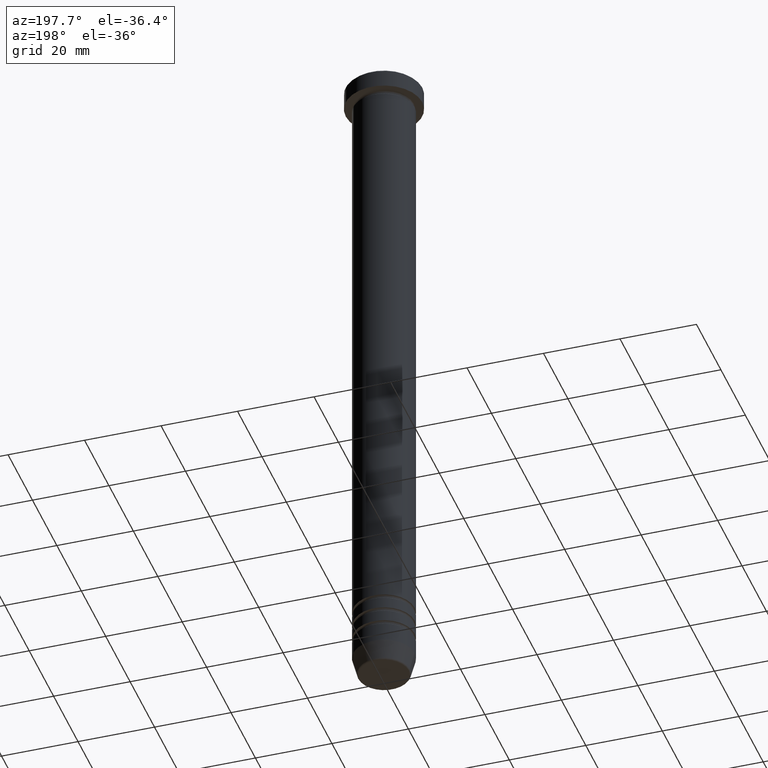
[diagram: clean part render]
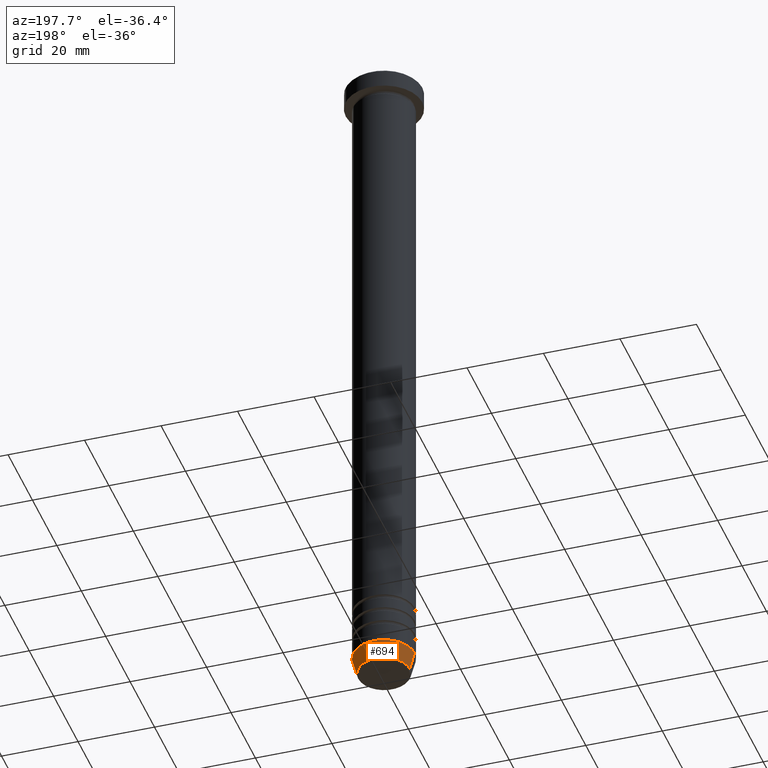
[diagram: same view with one face highlighted and labeled with its STEP entity id]
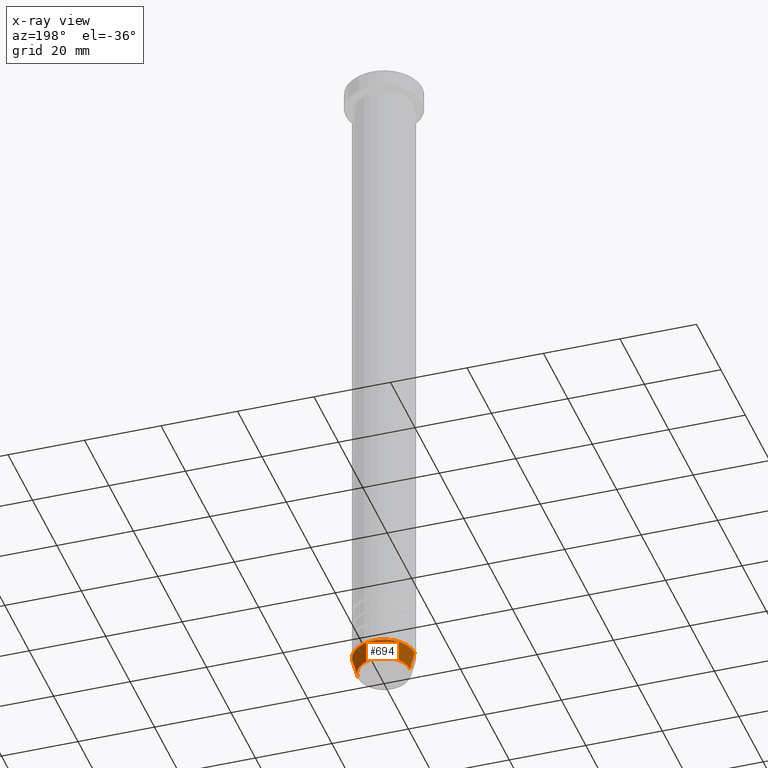
[diagram: x-ray of the same camera — body ghosted, the highlighted face saturated]
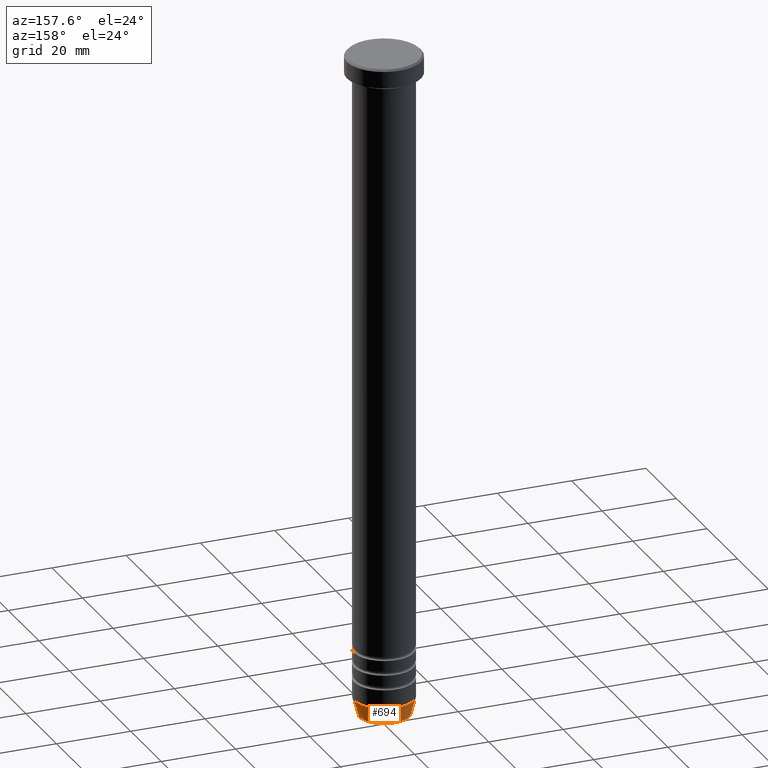
[diagram: same view with one face highlighted and labeled with its STEP entity id]
A machine part, auxiliary view. The second image highlights one B-rep face of the part: STEP entity #694.
The next image is the same camera in x-ray: the body ghosted, the highlighted face saturated — about 0% of this face is hidden behind the body in this view.
A second angle (auxiliary view) of the same face is appended — the face is thin or edge-on in the first view.
In plain terms, the highlighted conical surface has half-angle 15 deg.
Its self-contained STEP definition (entity closure, byte-faithful):
#21 = EDGE_LOOP ( 'NONE', ( #463, #450, #361, #718 ) ) ;
#22 = LINE ( 'NONE', #261, #150 ) ;
#94 = EDGE_CURVE ( 'NONE', #337, #840, #22, .T. ) ;
#114 = VERTEX_POINT ( 'NONE', #407 ) ;
#150 = VECTOR ( 'NONE', #415, 1000.000000000000114 ) ;
#156 = EDGE_CURVE ( 'NONE', #940, #114, #490, .T. ) ;
#243 = CARTESIAN_POINT ( 'NONE',  ( 0.000000000000000000, 0.000000000000000000, -175.0000000000000284 ) ) ;
#261 = CARTESIAN_POINT ( 'NONE',  ( -6.660254037844388186, 8.156458788954364706E-16, -180.0000000000000000 ) ) ;
#292 = FACE_OUTER_BOUND ( 'NONE', #21, .T. ) ;
#313 = DIRECTION ( 'NONE',  ( 1.000000000000000000, 0.000000000000000000, 0.000000000000000000 ) ) ;
#334 = CARTESIAN_POINT ( 'NONE',  ( 6.660254037844388186, 0.000000000000000000, -180.0000000000000000 ) ) ;
#337 = VERTEX_POINT ( 'NONE', #851 ) ;
#361 = ORIENTED_EDGE ( 'NONE', *, *, #844, .F. ) ;
#407 = CARTESIAN_POINT ( 'NONE',  ( 8.000000000000000000, 0.000000000000000000, -175.0000000000000284 ) ) ;
#409 = DIRECTION ( 'NONE',  ( -0.000000000000000000, -0.000000000000000000, 1.000000000000000000 ) ) ;
#415 = DIRECTION ( 'NONE',  ( -0.2588190451025215166, 3.169619151431774802E-17, 0.9659258262890679791 ) ) ;
#446 = DIRECTION ( 'NONE',  ( -0.000000000000000000, -0.000000000000000000, 1.000000000000000000 ) ) ;
#450 = ORIENTED_EDGE ( 'NONE', *, *, #94, .T. ) ;
#463 = ORIENTED_EDGE ( 'NONE', *, *, #753, .T. ) ;
#490 = LINE ( 'NONE', #334, #867 ) ;
#515 = DIRECTION ( 'NONE',  ( 1.000000000000000000, 0.000000000000000000, 0.000000000000000000 ) ) ;
#571 = AXIS2_PLACEMENT_3D ( 'NONE', #243, #409, #313 ) ;
#601 = DIRECTION ( 'NONE',  ( -1.000000000000000000, 0.000000000000000000, 0.000000000000000000 ) ) ;
#605 = CIRCLE ( 'NONE', #914, 6.759553456999437770 ) ;
#694 = ADVANCED_FACE ( 'NONE', ( #292 ), #955, .T. ) ;
#718 = ORIENTED_EDGE ( 'NONE', *, *, #156, .F. ) ;
#721 = CARTESIAN_POINT ( 'NONE',  ( 6.759553456999437770, 0.000000000000000000, -179.6294095225512422 ) ) ;
#727 = CARTESIAN_POINT ( 'NONE',  ( -8.000000000000000000, 9.797174393178825657E-16, -175.0000000000000284 ) ) ;
#731 = DIRECTION ( 'NONE',  ( 0.2588190451025215166, 0.000000000000000000, 0.9659258262890679791 ) ) ;
#753 = EDGE_CURVE ( 'NONE', #940, #337, #605, .T. ) ;
#837 = CARTESIAN_POINT ( 'NONE',  ( 0.000000000000000000, 0.000000000000000000, -179.6294095225512422 ) ) ;
#840 = VERTEX_POINT ( 'NONE', #727 ) ;
#844 = EDGE_CURVE ( 'NONE', #114, #840, #1045, .T. ) ;
#851 = CARTESIAN_POINT ( 'NONE',  ( -6.759553456999437770, 9.037619948979306213E-16, -179.6294095225512422 ) ) ;
#858 = CARTESIAN_POINT ( 'NONE',  ( 0.000000000000000000, 0.000000000000000000, -180.0000000000000000 ) ) ;
#867 = VECTOR ( 'NONE', #731, 1000.000000000000114 ) ;
#914 = AXIS2_PLACEMENT_3D ( 'NONE', #837, #446, #601 ) ;
#940 = VERTEX_POINT ( 'NONE', #721 ) ;
#955 = CONICAL_SURFACE ( 'NONE', #1027, 6.660254037844388186, 0.2617993877991502960 ) ;
#1025 = DIRECTION ( 'NONE',  ( -0.000000000000000000, -0.000000000000000000, 1.000000000000000000 ) ) ;
#1027 = AXIS2_PLACEMENT_3D ( 'NONE', #858, #1025, #515 ) ;
#1045 = CIRCLE ( 'NONE', #571, 8.000000000000000000 ) ;